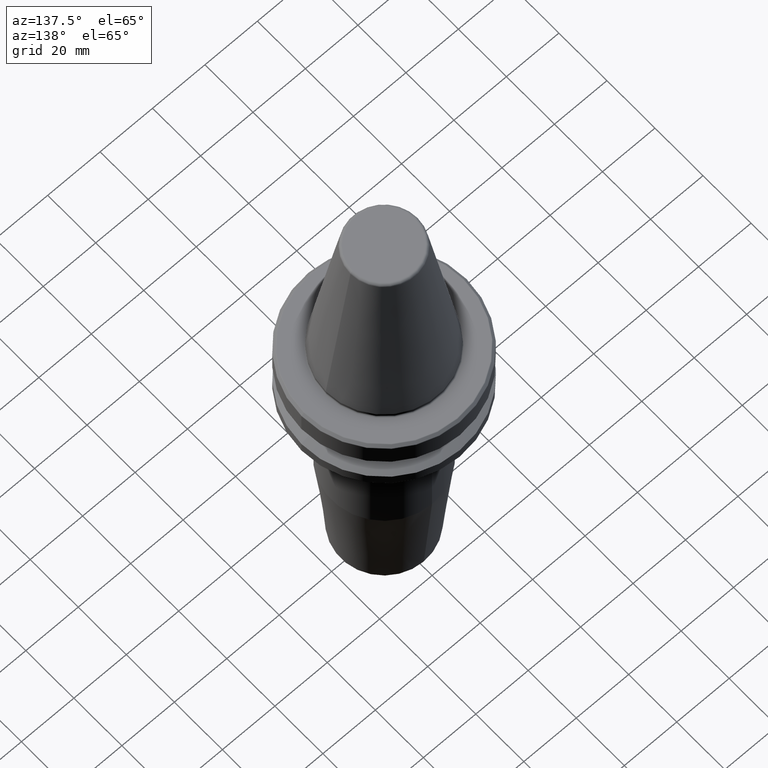
[diagram: clean part render]
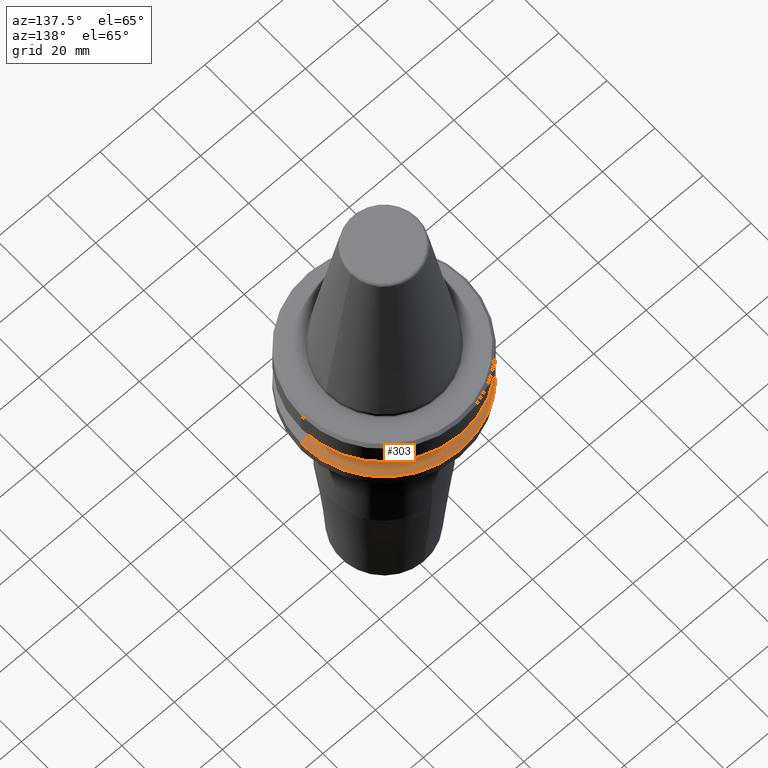
[diagram: same view with one face highlighted and labeled with its STEP entity id]
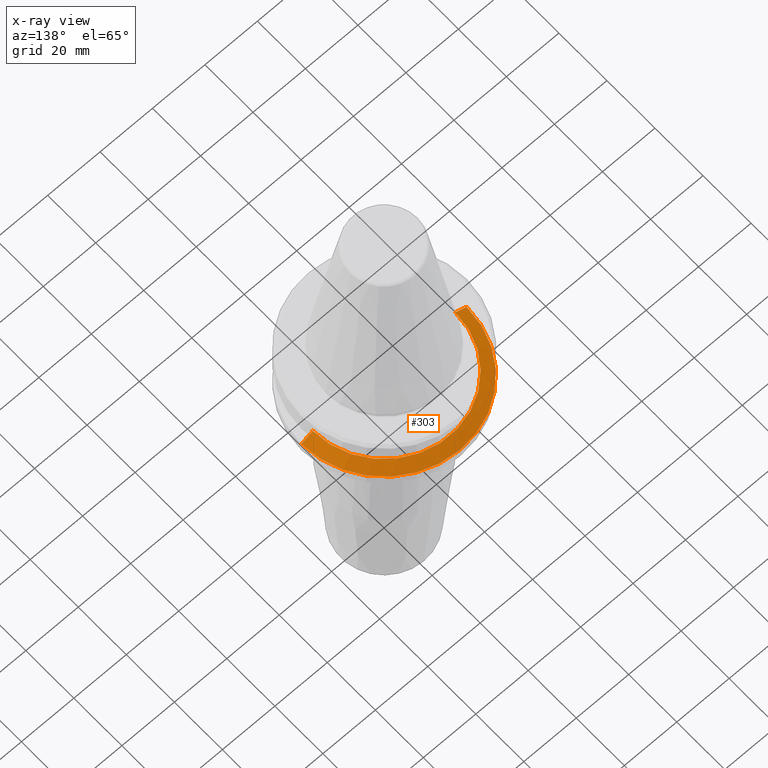
[diagram: x-ray of the same camera — body ghosted, the highlighted face saturated]
A machine part, auxiliary view. The second image highlights one B-rep face of the part: STEP entity #303.
The next image is the same camera in x-ray: the body ghosted, the highlighted face saturated — about 0% of this face is hidden behind the body in this view.
In plain terms, the highlighted conical surface has half-angle 60 deg.
Its self-contained STEP definition (entity closure, byte-faithful):
#14 = EDGE_CURVE ( 'NONE', #480, #240, #1023, .T. ) ;
#54 = VERTEX_POINT ( 'NONE', #705 ) ;
#185 = EDGE_CURVE ( 'NONE', #240, #54, #357, .T. ) ;
#218 = CONICAL_SURFACE ( 'NONE', #755, 27.16962701892216700, 1.047197551196601200 ) ;
#223 = DIRECTION ( 'NONE',  ( 1.000000000000000000, 0.0000000000000000000, 0.0000000000000000000 ) ) ;
#240 = VERTEX_POINT ( 'NONE', #897 ) ;
#244 = LINE ( 'NONE', #539, #734 ) ;
#303 = ADVANCED_FACE ( 'NONE', ( #1041 ), #218, .T. ) ;
#357 = CIRCLE ( 'NONE', #1250, 31.50000000000000000 ) ;
#426 = DIRECTION ( 'NONE',  ( -0.8660254037844403700, 0.0000000000000000000, -0.4999999999999970000 ) ) ;
#467 = EDGE_LOOP ( 'NONE', ( #1107, #660, #775, #498 ) ) ;
#477 = CARTESIAN_POINT ( 'NONE',  ( 27.16962701892216700, 3.592478546794605500E-015, -19.10000000000000500 ) ) ;
#480 = VERTEX_POINT ( 'NONE', #477 ) ;
#498 = ORIENTED_EDGE ( 'NONE', *, *, #849, .F. ) ;
#516 = VERTEX_POINT ( 'NONE', #532 ) ;
#518 = CARTESIAN_POINT ( 'NONE',  ( 0.0000000000000000000, 0.0000000000000000000, -19.10000000000000500 ) ) ;
#532 = CARTESIAN_POINT ( 'NONE',  ( -27.16962701892216700, 0.0000000000000000000, -19.10000000000000500 ) ) ;
#539 = CARTESIAN_POINT ( 'NONE',  ( -27.16962701892216700, 0.0000000000000000000, -19.10000000000000500 ) ) ;
#579 = CARTESIAN_POINT ( 'NONE',  ( 27.16962701892216700, 3.327319676275047600E-015, -19.10000000000000500 ) ) ;
#659 = CARTESIAN_POINT ( 'NONE',  ( 0.0000000000000000000, 0.0000000000000000000, -19.10000000000000500 ) ) ;
#660 = ORIENTED_EDGE ( 'NONE', *, *, #14, .T. ) ;
#705 = CARTESIAN_POINT ( 'NONE',  ( -31.50000000000000000, 3.857637417314162700E-015, -21.60014200631675500 ) ) ;
#734 = VECTOR ( 'NONE', #426, 1000.000000000000000 ) ;
#749 = VECTOR ( 'NONE', #1207, 1000.000000000000000 ) ;
#755 = AXIS2_PLACEMENT_3D ( 'NONE', #659, #835, #937 ) ;
#774 = EDGE_CURVE ( 'NONE', #480, #516, #1096, .T. ) ;
#775 = ORIENTED_EDGE ( 'NONE', *, *, #185, .T. ) ;
#814 = CARTESIAN_POINT ( 'NONE',  ( 0.0000000000000000000, 0.0000000000000000000, -21.60014200631675500 ) ) ;
#835 = DIRECTION ( 'NONE',  ( 0.0000000000000000000, 0.0000000000000000000, -1.000000000000000000 ) ) ;
#849 = EDGE_CURVE ( 'NONE', #516, #54, #244, .T. ) ;
#854 = DIRECTION ( 'NONE',  ( 1.000000000000000000, 0.0000000000000000000, 0.0000000000000000000 ) ) ;
#868 = DIRECTION ( 'NONE',  ( -0.0000000000000000000, -0.0000000000000000000, 1.000000000000000000 ) ) ;
#897 = CARTESIAN_POINT ( 'NONE',  ( 31.50000000000000000, 0.0000000000000000000, -21.60014200631675500 ) ) ;
#917 = AXIS2_PLACEMENT_3D ( 'NONE', #518, #868, #854 ) ;
#937 = DIRECTION ( 'NONE',  ( -1.000000000000000000, 0.0000000000000000000, 0.0000000000000000000 ) ) ;
#1017 = DIRECTION ( 'NONE',  ( -0.0000000000000000000, -0.0000000000000000000, 1.000000000000000000 ) ) ;
#1023 = LINE ( 'NONE', #579, #749 ) ;
#1041 = FACE_OUTER_BOUND ( 'NONE', #467, .T. ) ;
#1096 = CIRCLE ( 'NONE', #917, 27.16962701892216700 ) ;
#1107 = ORIENTED_EDGE ( 'NONE', *, *, #774, .F. ) ;
#1207 = DIRECTION ( 'NONE',  ( 0.8660254037844403700, 1.060575238724909000E-016, -0.4999999999999970000 ) ) ;
#1250 = AXIS2_PLACEMENT_3D ( 'NONE', #814, #1017, #223 ) ;